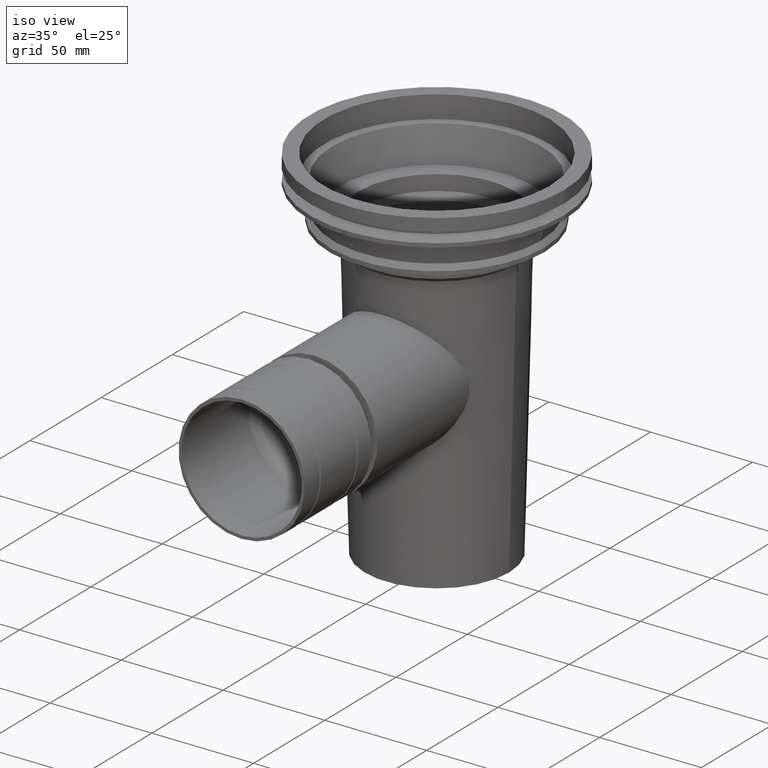
[diagram: clean part render]
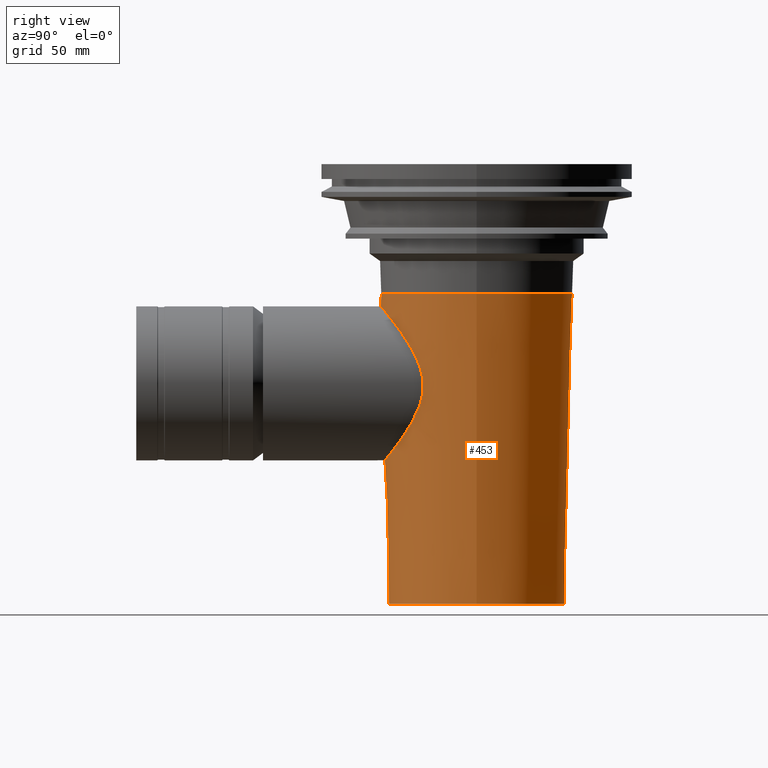
[diagram: tour spotlight — one face highlighted and labeled with its STEP entity id]
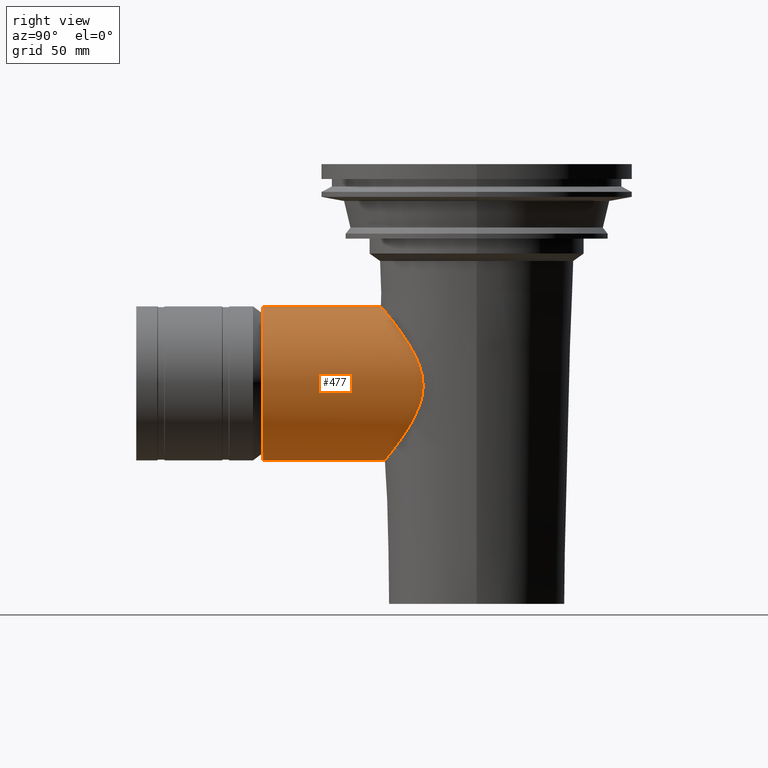
[diagram: tour spotlight — one face highlighted and labeled with its STEP entity id]
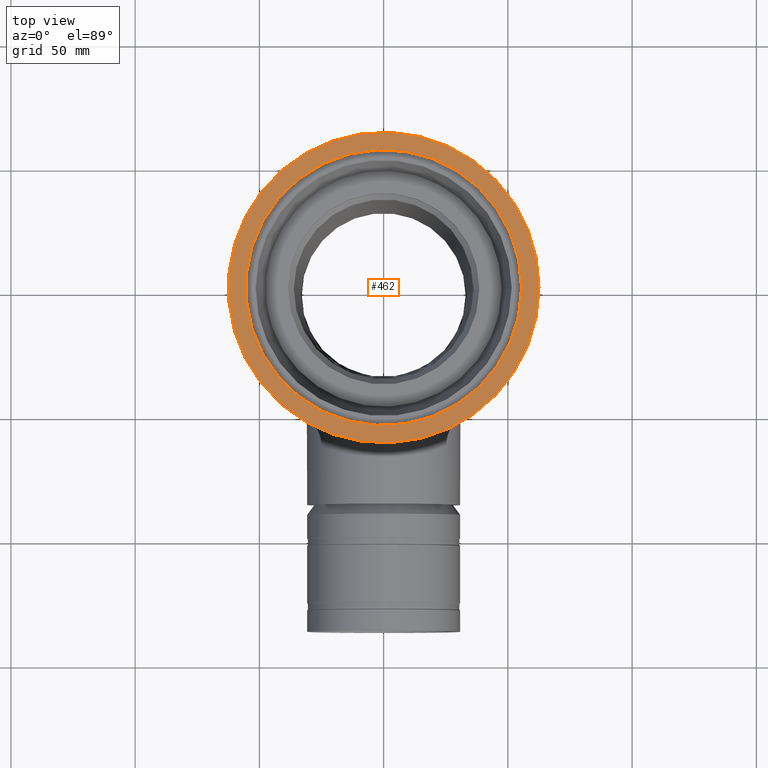
[diagram: tour spotlight — one face highlighted and labeled with its STEP entity id]
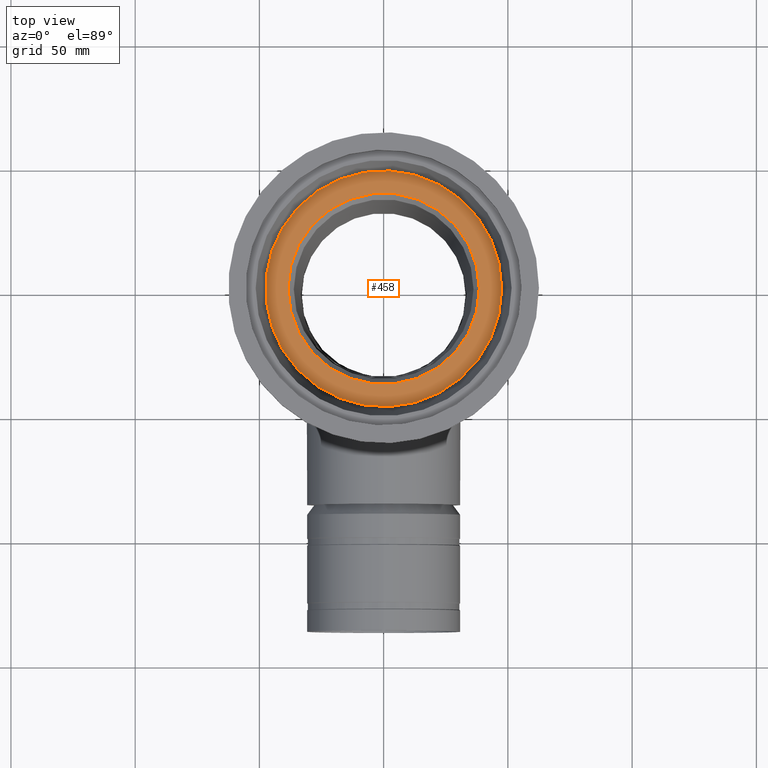
[diagram: tour spotlight — one face highlighted and labeled with its STEP entity id]
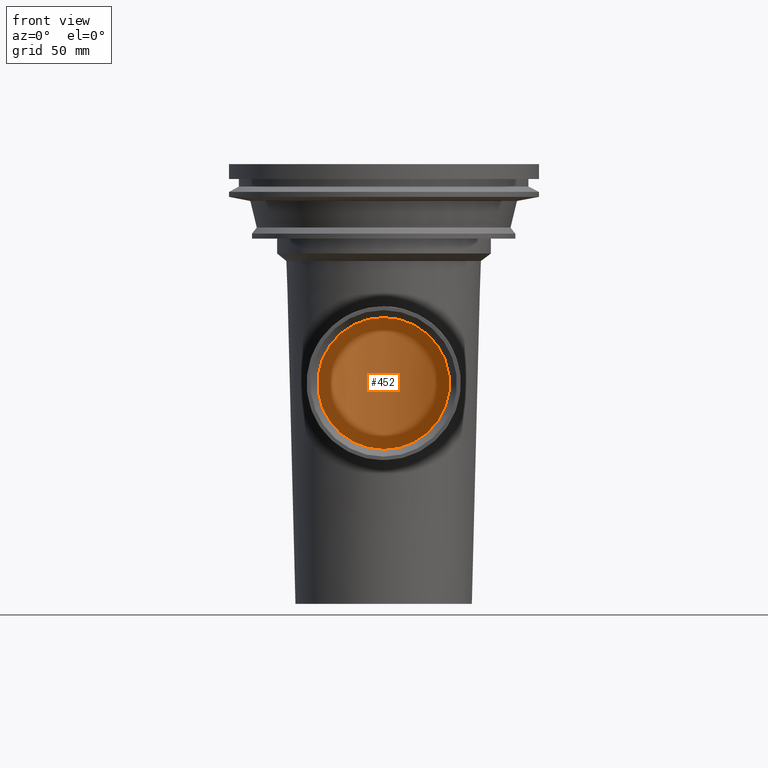
[diagram: tour spotlight — one face highlighted and labeled with its STEP entity id]
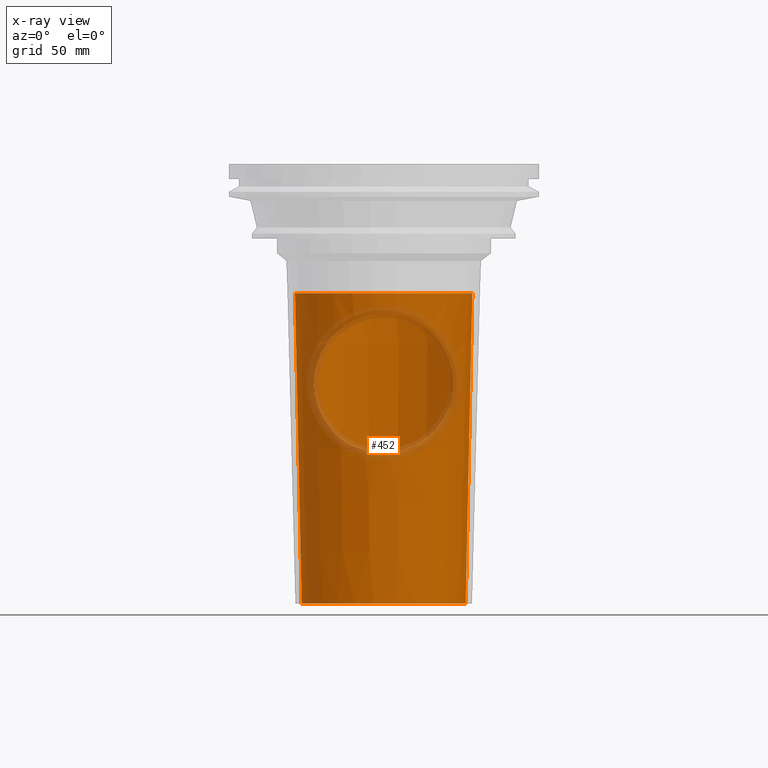
[diagram: x-ray of the same camera — body ghosted, this tour face saturated]
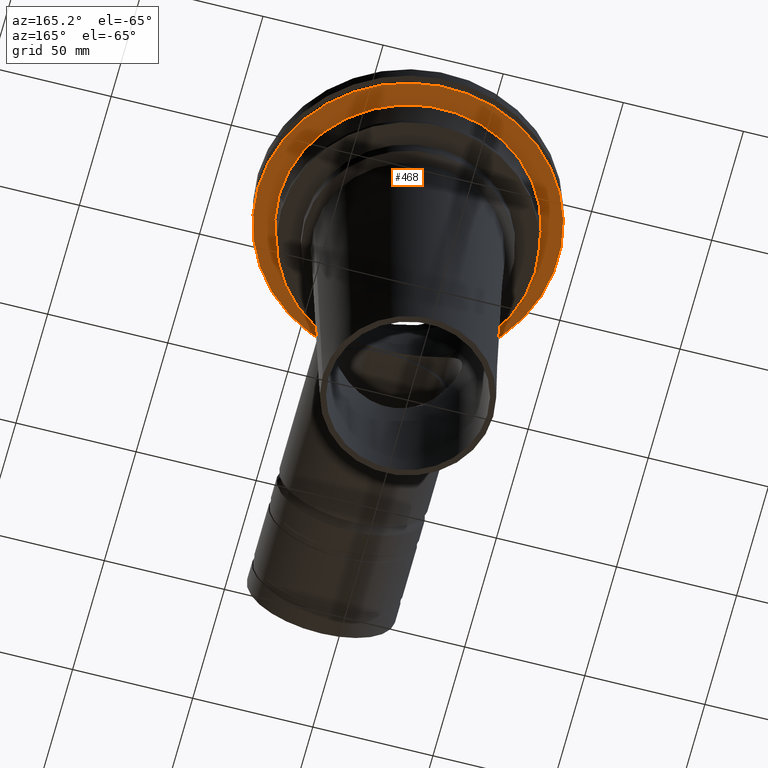
[diagram: tour spotlight — one face highlighted and labeled with its STEP entity id]
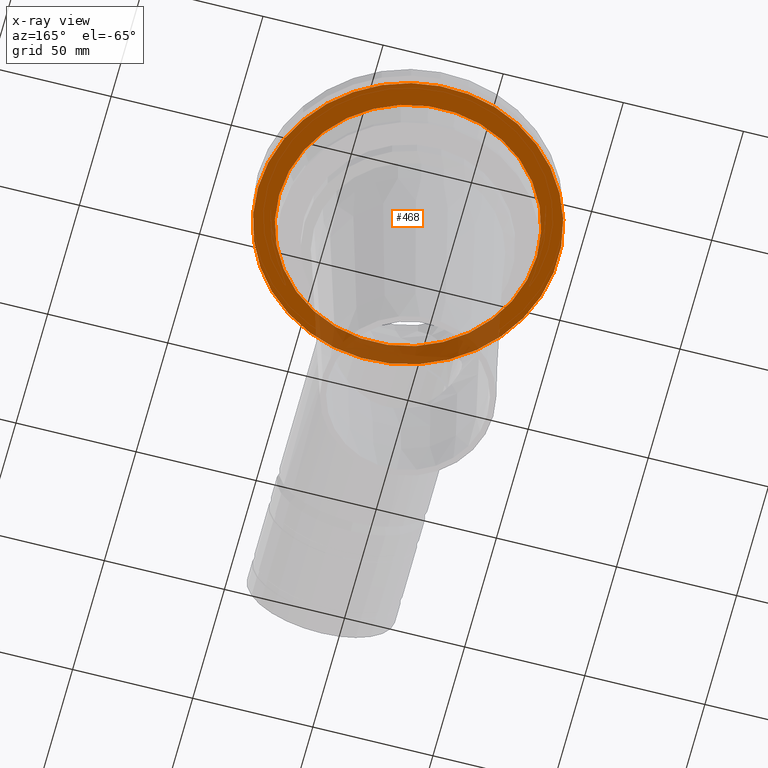
[diagram: x-ray of the same camera — body ghosted, this tour face saturated]
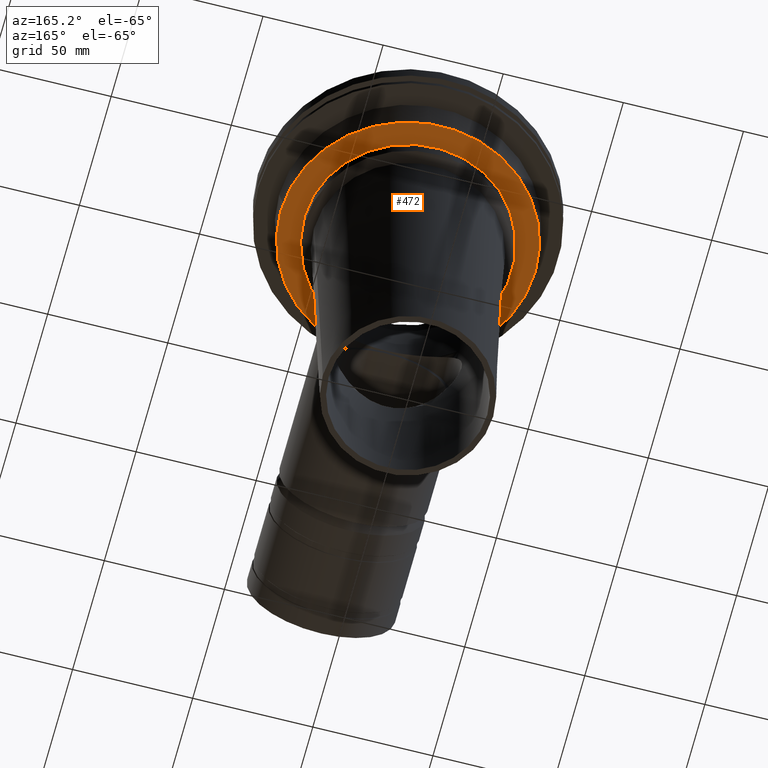
[diagram: tour spotlight — one face highlighted and labeled with its STEP entity id]
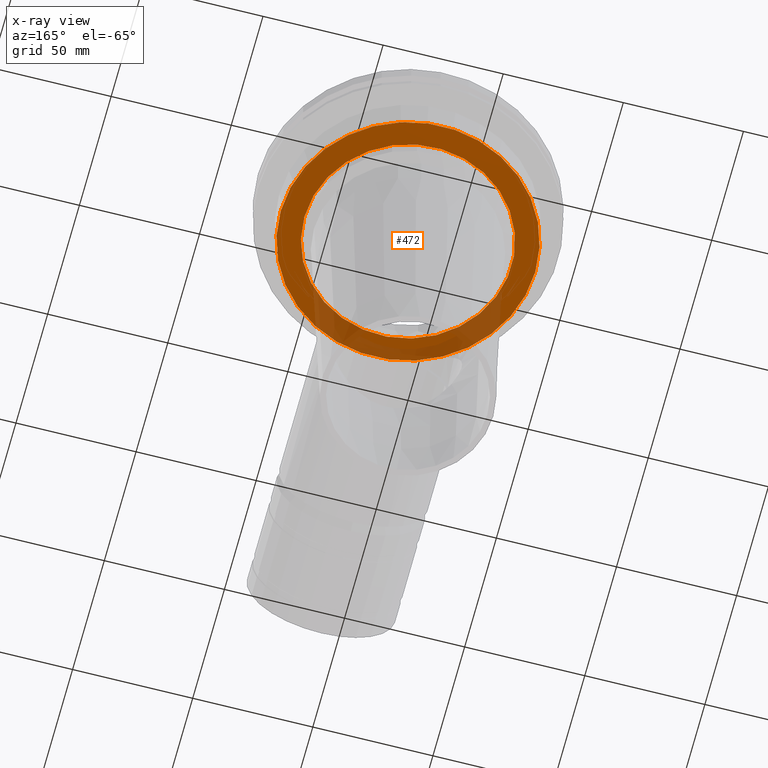
[diagram: x-ray of the same camera — body ghosted, this tour face saturated]
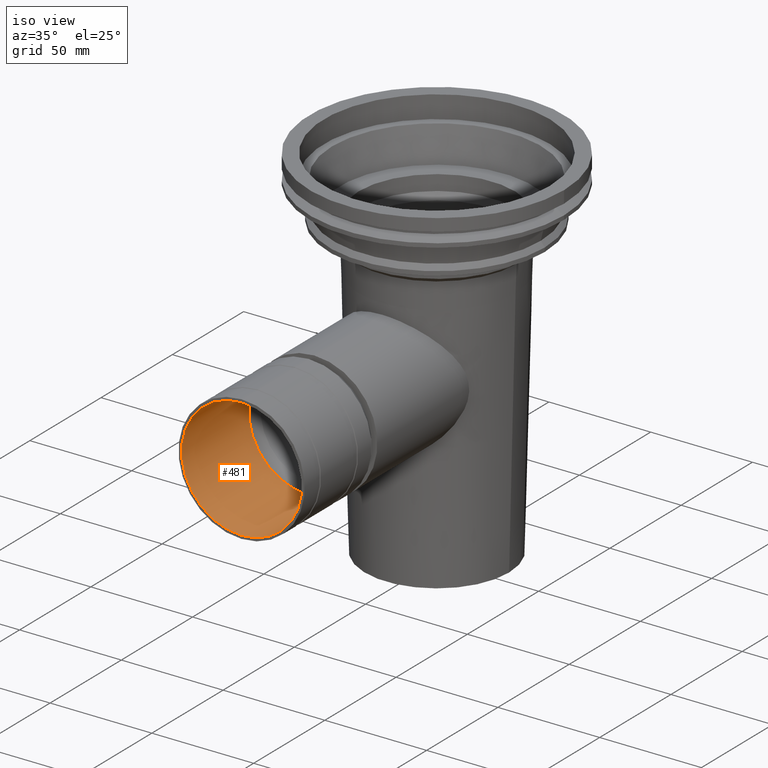
[diagram: tour spotlight — one face highlighted and labeled with its STEP entity id]
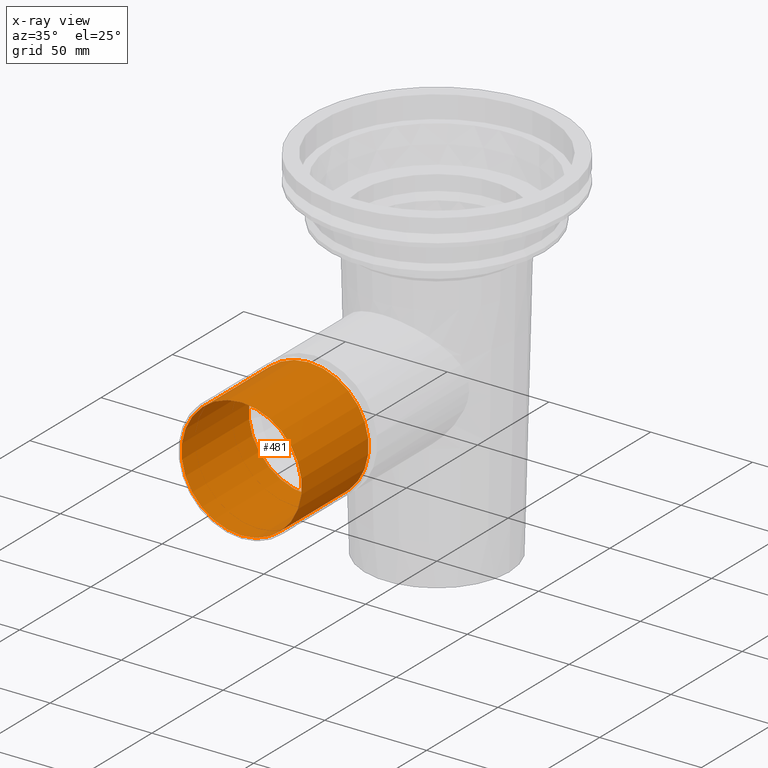
[diagram: x-ray of the same camera — body ghosted, this tour face saturated]
A machine part: a face-by-face anatomy tour. The part has 42 B-rep faces; the first image is the clean iso view, then the 8 largest visible faces are spotlighted one at a time (largest first), each with its STEP entity span.

Face 1 — right view, entity #453. In plain terms, the highlighted conical surface has half-angle 1.457 deg.
Definition (entity closure, byte-faithful):
#30=CONICAL_SURFACE('',#515,38.6793859391097,0.0254294472015564);
#47=B_SPLINE_CURVE_WITH_KNOTS('',3,(#827,#828,#829,#830,#831,#832,#833,
#834,#835,#836,#837,#838,#839,#840,#841,#842,#843,#844,#845,#846,#847,#848,
#849,#850,#851,#852,#853,#854,#855,#856,#857,#858,#859,#860,#861,#862,#863,
#864,#865,#866,#867,#868,#869,#870,#871,#872,#873,#874,#875,#876,#877,#878,
#879,#880),.UNSPECIFIED.,.T.,.F.,(1,1,1,1,1,1,1,1,1,1,1,1,1,1,1,1,1,1,1,
1,1,1,1,1,1,1,1,1,1,1,1,1,1,1,1,1,1,1,1,1,1,1,1,1,1,1,1,1,1,1,1,1,1,1,1,
1,1,1),(-0.0128925396919072,-0.00644626984595356,-0.00322313492297679,0.,
0.00644626984595357,0.0128925396919071,0.0193388095378607,0.0225619444608375,
0.0257850793838143,0.0322313492297679,0.0354544841527446,0.0386776190757214,
0.045123888921675,0.0483470238446518,0.0515701587676286,0.0547932936906054,
0.0580164286135821,0.0612395635365589,0.0644626984595357,0.0709089683054893,
0.0741321032284661,0.0773552381514429,0.0805783730744196,0.0838015079973964,
0.0870246429203732,0.09024777784335,0.0966940476893036,0.0999171826122804,
0.103140317535257,0.109586587381211,0.112809722304187,0.116032857227164,
0.122479127073118,0.125702261996095,0.128925396919071,0.135371666765025,
0.138594801688002,0.141817936610979,0.148264206456932,0.151487341379909,
0.154710476302886,0.161156746148839,0.164379881071816,0.167603015994793,
0.17082615091777,0.174049285840746,0.177272420763723,0.1804955556867,0.183718690609677,
0.186941825532654,0.19016496045563,0.193388095378607,0.199834365224561,
0.203057500147537,0.206280635070514,0.212726904916468,0.219173174762421,
0.225619444608375),.UNSPECIFIED.);
#57=ORIENTED_EDGE('',*,*,#142,.T.);
#58=ORIENTED_EDGE('',*,*,#143,.F.);
#59=ORIENTED_EDGE('',*,*,#144,.F.);
#142=EDGE_CURVE('',#185,#185,#227,.T.);
#143=EDGE_CURVE('',#186,#186,#47,.T.);
#144=EDGE_CURVE('',#187,#187,#228,.T.);
#185=VERTEX_POINT('',#826);
#186=VERTEX_POINT('',#881);
#187=VERTEX_POINT('',#883);
#227=CIRCLE('',#516,35.5000196897832);
#228=CIRCLE('',#517,38.6793859391097);
#270=EDGE_LOOP('',(#57));
#271=EDGE_LOOP('',(#58));
#272=EDGE_LOOP('',(#59));
#356=FACE_BOUND('',#270,.T.);
#357=FACE_BOUND('',#271,.T.);
#358=FACE_BOUND('',#272,.T.);
#453=ADVANCED_FACE('',(#356,#357,#358),#30,.T.);
#515=AXIS2_PLACEMENT_3D('',#824,#611,#612);
#516=AXIS2_PLACEMENT_3D('',#825,#613,#614);
#517=AXIS2_PLACEMENT_3D('',#882,#615,#616);
#611=DIRECTION('',(0.,0.,1.));
#612=DIRECTION('',(1.,0.,0.));
#613=DIRECTION('',(0.,0.,1.));
#614=DIRECTION('',(1.,0.,0.));
#615=DIRECTION('',(0.,0.,1.));
#616=DIRECTION('',(1.,0.,0.));
#824=CARTESIAN_POINT('',(0.,0.,-52.));
#825=CARTESIAN_POINT('',(0.,0.,-177.));
#826=CARTESIAN_POINT('',(35.5000196897832,0.,-177.));
#827=CARTESIAN_POINT('',(-24.2020794138604,-28.3655979840772,-107.694062204024));
#828=CARTESIAN_POINT('',(-21.6196090537164,-30.3372340167425,-110.61481679467));
#829=CARTESIAN_POINT('',(-17.9288782946455,-32.645616957629,-113.771398485993));
#830=CARTESIAN_POINT('',(-12.6111455214792,-34.9898348086712,-116.793748279918));
#831=CARTESIAN_POINT('',(-7.63367143167863,-36.3039376575916,-118.429937776735));
#832=CARTESIAN_POINT('',(-3.3622724666985,-36.8655703686754,-119.123110523214));
#833=CARTESIAN_POINT('',(0.902393439781273,-37.0647882541578,-119.367655378367));
#834=CARTESIAN_POINT('',(5.26870966359604,-36.7070477854964,-118.929302080987));
#835=CARTESIAN_POINT('',(9.34764894023942,-35.8487414241136,-117.86311604215));
#836=CARTESIAN_POINT('',(13.292782656803,-34.6784162055808,-116.390982148196));
#837=CARTESIAN_POINT('',(16.8219161051439,-33.1470732802401,-114.421413207739));
#838=CARTESIAN_POINT('',(19.9787253282292,-31.3610412319053,-112.014151319368));
#839=CARTESIAN_POINT('',(22.1050138893091,-29.9576239953867,-110.047165142013));
#840=CARTESIAN_POINT('',(24.026710887276,-28.5071003172742,-107.909167382278));
#841=CARTESIAN_POINT('',(25.7548125950132,-27.0334136855193,-105.585422435672));
#842=CARTESIAN_POINT('',(27.2694817762062,-25.5915545011716,-103.089135355185));
#843=CARTESIAN_POINT('',(28.9752665386673,-23.8079877870818,-99.5754224116323));
#844=CARTESIAN_POINT('',(30.2351758387411,-22.3151816102908,-95.6437243406531));
#845=CARTESIAN_POINT('',(30.893866456091,-21.5671225153926,-91.427865457505));
#846=CARTESIAN_POINT('',(31.0565692225448,-21.4775209995505,-88.1514056409559));
#847=CARTESIAN_POINT('',(30.8791388355016,-21.8769786184087,-84.9497645881513));
#848=CARTESIAN_POINT('',(30.3765440039348,-22.7097819948825,-81.810739274948));
#849=CARTESIAN_POINT('',(29.6048512491688,-23.8324266700252,-78.8940066114416));
#850=CARTESIAN_POINT('',(28.2238417394831,-25.6276103895083,-75.166771297401));
#851=CARTESIAN_POINT('',(26.4069047165941,-27.637302498281,-71.8231006785557));
#852=CARTESIAN_POINT('',(24.1738854848016,-29.6775412306832,-68.772758832251));
#853=CARTESIAN_POINT('',(21.6248457360643,-31.718874486504,-65.8932457832605));
#854=CARTESIAN_POINT('',(18.699386916398,-33.6140700841759,-63.3911651688076));
#855=CARTESIAN_POINT('',(15.3715002001309,-35.2761049835387,-61.2726112403867));
#856=CARTESIAN_POINT('',(11.7065077924409,-36.7621608123346,-59.4164873596149));
#857=CARTESIAN_POINT('',(7.74794598366786,-37.8432982503688,-58.0989267598268));
#858=CARTESIAN_POINT('',(3.46396140672299,-38.4315275182105,-57.387643647713));
#859=CARTESIAN_POINT('',(-0.810199747749418,-38.6460845673677,-57.1294412054625));
#860=CARTESIAN_POINT('',(-5.17996593244627,-38.2914621596288,-57.5554701107728));
#861=CARTESIAN_POINT('',(-9.2641761361357,-37.4233506475094,-58.6106267326447));
#862=CARTESIAN_POINT('',(-13.211942222454,-36.2344442018669,-60.0712245789772));
#863=CARTESIAN_POINT('',(-16.739169717078,-34.6728912338818,-62.0262958044075));
#864=CARTESIAN_POINT('',(-19.8950066806098,-32.8376136625767,-64.4161409748136));
#865=CARTESIAN_POINT('',(-22.7230522584004,-30.9075921267132,-67.0134431479447));
#866=CARTESIAN_POINT('',(-25.1420374738943,-28.8566507757776,-69.9394048790794));
#867=CARTESIAN_POINT('',(-27.1567863440715,-26.8060976713918,-73.2079153487557));
#868=CARTESIAN_POINT('',(-28.4292566646641,-25.3485868058738,-75.778471782283));
#869=CARTESIAN_POINT('',(-29.4769446549533,-24.0069969876869,-78.5014316209705));
#870=CARTESIAN_POINT('',(-30.2914064230381,-22.8409381375682,-81.4200593509239));
#871=CARTESIAN_POINT('',(-30.833063194216,-21.9604349682587,-84.5434069315562));
#872=CARTESIAN_POINT('',(-31.0537370673468,-21.4991191010853,-87.764512906828));
#873=CARTESIAN_POINT('',(-30.9302551908082,-21.531077852359,-91.055245427576));
#874=CARTESIAN_POINT('',(-30.4718245744641,-22.0431867091058,-94.2388501309101));
#875=CARTESIAN_POINT('',(-29.701565249598,-22.9503611890216,-97.3051507732453));
#876=CARTESIAN_POINT('',(-28.3368255219108,-24.5002872989631,-101.095756778406));
#877=CARTESIAN_POINT('',(-26.4700449301132,-26.4101938044589,-104.585820060428));
#878=CARTESIAN_POINT('',(-24.2020794138604,-28.3655979840772,-107.694062204024));
#879=CARTESIAN_POINT('',(-21.6196090537164,-30.3372340167425,-110.61481679467));
#880=CARTESIAN_POINT('',(-17.9288782946455,-32.645616957629,-113.771398485993));
#881=CARTESIAN_POINT('',(-22.2343837898263,-29.8339142019131,-109.851670710542));
#882=CARTESIAN_POINT('',(0.,0.,-52.));
#883=CARTESIAN_POINT('',(38.6793859391097,0.,-52.));

Face 2 — right view, entity #477. In plain terms, the highlighted cylindrical surface (bore or boss wall) has radius 31 mm, axis along (0, 1, 0).
Definition (entity closure, byte-faithful):
#47=B_SPLINE_CURVE_WITH_KNOTS('',3,(#827,#828,#829,#830,#831,#832,#833,
#834,#835,#836,#837,#838,#839,#840,#841,#842,#843,#844,#845,#846,#847,#848,
#849,#850,#851,#852,#853,#854,#855,#856,#857,#858,#859,#860,#861,#862,#863,
#864,#865,#866,#867,#868,#869,#870,#871,#872,#873,#874,#875,#876,#877,#878,
#879,#880),.UNSPECIFIED.,.T.,.F.,(1,1,1,1,1,1,1,1,1,1,1,1,1,1,1,1,1,1,1,
1,1,1,1,1,1,1,1,1,1,1,1,1,1,1,1,1,1,1,1,1,1,1,1,1,1,1,1,1,1,1,1,1,1,1,1,
1,1,1),(-0.0128925396919072,-0.00644626984595356,-0.00322313492297679,0.,
0.00644626984595357,0.0128925396919071,0.0193388095378607,0.0225619444608375,
0.0257850793838143,0.0322313492297679,0.0354544841527446,0.0386776190757214,
0.045123888921675,0.0483470238446518,0.0515701587676286,0.0547932936906054,
0.0580164286135821,0.0612395635365589,0.0644626984595357,0.0709089683054893,
0.0741321032284661,0.0773552381514429,0.0805783730744196,0.0838015079973964,
0.0870246429203732,0.09024777784335,0.0966940476893036,0.0999171826122804,
0.103140317535257,0.109586587381211,0.112809722304187,0.116032857227164,
0.122479127073118,0.125702261996095,0.128925396919071,0.135371666765025,
0.138594801688002,0.141817936610979,0.148264206456932,0.151487341379909,
0.154710476302886,0.161156746148839,0.164379881071816,0.167603015994793,
0.17082615091777,0.174049285840746,0.177272420763723,0.1804955556867,0.183718690609677,
0.186941825532654,0.19016496045563,0.193388095378607,0.199834365224561,
0.203057500147537,0.206280635070514,0.212726904916468,0.219173174762421,
0.225619444608375),.UNSPECIFIED.);
#106=ORIENTED_EDGE('',*,*,#166,.T.);
#107=ORIENTED_EDGE('',*,*,#143,.T.);
#143=EDGE_CURVE('',#186,#186,#47,.T.);
#166=EDGE_CURVE('',#209,#209,#250,.T.);
#186=VERTEX_POINT('',#881);
#209=VERTEX_POINT('',#950);
#250=CIRCLE('',#562,31.);
#319=EDGE_LOOP('',(#106));
#320=EDGE_LOOP('',(#107));
#405=FACE_BOUND('',#319,.T.);
#406=FACE_BOUND('',#320,.T.);
#443=CYLINDRICAL_SURFACE('',#563,31.);
#477=ADVANCED_FACE('',(#405,#406),#443,.T.);
#562=AXIS2_PLACEMENT_3D('',#949,#705,#706);
#563=AXIS2_PLACEMENT_3D('',#951,#707,#708);
#705=DIRECTION('',(0.,1.,0.));
#706=DIRECTION('',(0.,0.,1.));
#707=DIRECTION('',(0.,1.,0.));
#708=DIRECTION('',(0.,0.,1.));
#827=CARTESIAN_POINT('',(-24.2020794138604,-28.3655979840772,-107.694062204024));
#828=CARTESIAN_POINT('',(-21.6196090537164,-30.3372340167425,-110.61481679467));
#829=CARTESIAN_POINT('',(-17.9288782946455,-32.645616957629,-113.771398485993));
#830=CARTESIAN_POINT('',(-12.6111455214792,-34.9898348086712,-116.793748279918));
#831=CARTESIAN_POINT('',(-7.63367143167863,-36.3039376575916,-118.429937776735));
#832=CARTESIAN_POINT('',(-3.3622724666985,-36.8655703686754,-119.123110523214));
#833=CARTESIAN_POINT('',(0.902393439781273,-37.0647882541578,-119.367655378367));
#834=CARTESIAN_POINT('',(5.26870966359604,-36.7070477854964,-118.929302080987));
#835=CARTESIAN_POINT('',(9.34764894023942,-35.8487414241136,-117.86311604215));
#836=CARTESIAN_POINT('',(13.292782656803,-34.6784162055808,-116.390982148196));
#837=CARTESIAN_POINT('',(16.8219161051439,-33.1470732802401,-114.421413207739));
#838=CARTESIAN_POINT('',(19.9787253282292,-31.3610412319053,-112.014151319368));
#839=CARTESIAN_POINT('',(22.1050138893091,-29.9576239953867,-110.047165142013));
#840=CARTESIAN_POINT('',(24.026710887276,-28.5071003172742,-107.909167382278));
#841=CARTESIAN_POINT('',(25.7548125950132,-27.0334136855193,-105.585422435672));
#842=CARTESIAN_POINT('',(27.2694817762062,-25.5915545011716,-103.089135355185));
#843=CARTESIAN_POINT('',(28.9752665386673,-23.8079877870818,-99.5754224116323));
#844=CARTESIAN_POINT('',(30.2351758387411,-22.3151816102908,-95.6437243406531));
#845=CARTESIAN_POINT('',(30.893866456091,-21.5671225153926,-91.427865457505));
#846=CARTESIAN_POINT('',(31.0565692225448,-21.4775209995505,-88.1514056409559));
#847=CARTESIAN_POINT('',(30.8791388355016,-21.8769786184087,-84.9497645881513));
#848=CARTESIAN_POINT('',(30.3765440039348,-22.7097819948825,-81.810739274948));
#849=CARTESIAN_POINT('',(29.6048512491688,-23.8324266700252,-78.8940066114416));
#850=CARTESIAN_POINT('',(28.2238417394831,-25.6276103895083,-75.166771297401));
#851=CARTESIAN_POINT('',(26.4069047165941,-27.637302498281,-71.8231006785557));
#852=CARTESIAN_POINT('',(24.1738854848016,-29.6775412306832,-68.772758832251));
#853=CARTESIAN_POINT('',(21.6248457360643,-31.718874486504,-65.8932457832605));
#854=CARTESIAN_POINT('',(18.699386916398,-33.6140700841759,-63.3911651688076));
#855=CARTESIAN_POINT('',(15.3715002001309,-35.2761049835387,-61.2726112403867));
#856=CARTESIAN_POINT('',(11.7065077924409,-36.7621608123346,-59.4164873596149));
#857=CARTESIAN_POINT('',(7.74794598366786,-37.8432982503688,-58.0989267598268));
#858=CARTESIAN_POINT('',(3.46396140672299,-38.4315275182105,-57.387643647713));
#859=CARTESIAN_POINT('',(-0.810199747749418,-38.6460845673677,-57.1294412054625));
#860=CARTESIAN_POINT('',(-5.17996593244627,-38.2914621596288,-57.5554701107728));
#861=CARTESIAN_POINT('',(-9.2641761361357,-37.4233506475094,-58.6106267326447));
#862=CARTESIAN_POINT('',(-13.211942222454,-36.2344442018669,-60.0712245789772));
#863=CARTESIAN_POINT('',(-16.739169717078,-34.6728912338818,-62.0262958044075));
#864=CARTESIAN_POINT('',(-19.8950066806098,-32.8376136625767,-64.4161409748136));
#865=CARTESIAN_POINT('',(-22.7230522584004,-30.9075921267132,-67.0134431479447));
#866=CARTESIAN_POINT('',(-25.1420374738943,-28.8566507757776,-69.9394048790794));
#867=CARTESIAN_POINT('',(-27.1567863440715,-26.8060976713918,-73.2079153487557));
#868=CARTESIAN_POINT('',(-28.4292566646641,-25.3485868058738,-75.778471782283));
#869=CARTESIAN_POINT('',(-29.4769446549533,-24.0069969876869,-78.5014316209705));
#870=CARTESIAN_POINT('',(-30.2914064230381,-22.8409381375682,-81.4200593509239));
#871=CARTESIAN_POINT('',(-30.833063194216,-21.9604349682587,-84.5434069315562));
#872=CARTESIAN_POINT('',(-31.0537370673468,-21.4991191010853,-87.764512906828));
#873=CARTESIAN_POINT('',(-30.9302551908082,-21.531077852359,-91.055245427576));
#874=CARTESIAN_POINT('',(-30.4718245744641,-22.0431867091058,-94.2388501309101));
#875=CARTESIAN_POINT('',(-29.701565249598,-22.9503611890216,-97.3051507732453));
#876=CARTESIAN_POINT('',(-28.3368255219108,-24.5002872989631,-101.095756778406));
#877=CARTESIAN_POINT('',(-26.4700449301132,-26.4101938044589,-104.585820060428));
#878=CARTESIAN_POINT('',(-24.2020794138604,-28.3655979840772,-107.694062204024));
#879=CARTESIAN_POINT('',(-21.6196090537164,-30.3372340167425,-110.61481679467));
#880=CARTESIAN_POINT('',(-17.9288782946455,-32.645616957629,-113.771398485993));
#881=CARTESIAN_POINT('',(-22.2343837898263,-29.8339142019131,-109.851670710542));
#949=CARTESIAN_POINT('',(0.,-86.,-88.25));
#950=CARTESIAN_POINT('',(0.,-86.,-57.25));
#951=CARTESIAN_POINT('',(0.,0.,-88.25));

Face 3 — top view, entity #462. In plain terms, the highlighted planar face has unit normal (0, 0, 1).
Definition (entity closure, byte-faithful):
#23=PLANE('',#533);
#76=ORIENTED_EDGE('',*,*,#152,.T.);
#77=ORIENTED_EDGE('',*,*,#151,.F.);
#151=EDGE_CURVE('',#194,#194,#235,.T.);
#152=EDGE_CURVE('',#195,#195,#236,.T.);
#194=VERTEX_POINT('',#905);
#195=VERTEX_POINT('',#908);
#235=CIRCLE('',#532,55.5);
#236=CIRCLE('',#534,62.5);
#289=EDGE_LOOP('',(#76));
#290=EDGE_LOOP('',(#77));
#375=FACE_BOUND('',#289,.T.);
#376=FACE_BOUND('',#290,.T.);
#462=ADVANCED_FACE('',(#375,#376),#23,.T.);
#532=AXIS2_PLACEMENT_3D('',#904,#645,#646);
#533=AXIS2_PLACEMENT_3D('',#906,#647,#648);
#534=AXIS2_PLACEMENT_3D('',#907,#649,#650);
#645=DIRECTION('',(0.,0.,1.));
#646=DIRECTION('',(1.,0.,0.));
#647=DIRECTION('',(0.,0.,1.));
#648=DIRECTION('',(1.,0.,0.));
#649=DIRECTION('',(0.,0.,1.));
#650=DIRECTION('',(1.,0.,0.));
#904=CARTESIAN_POINT('',(0.,0.,0.));
#905=CARTESIAN_POINT('',(55.5,0.,0.));
#906=CARTESIAN_POINT('',(55.5,0.,0.));
#907=CARTESIAN_POINT('',(0.,0.,0.));
#908=CARTESIAN_POINT('',(62.5,0.,0.));

Face 4 — top view, entity #458. In plain terms, the highlighted planar face has unit normal (0, 0, 1).
Definition (entity closure, byte-faithful):
#21=PLANE('',#525);
#68=ORIENTED_EDGE('',*,*,#148,.T.);
#69=ORIENTED_EDGE('',*,*,#147,.F.);
#147=EDGE_CURVE('',#190,#190,#231,.T.);
#148=EDGE_CURVE('',#191,#191,#232,.T.);
#190=VERTEX_POINT('',#893);
#191=VERTEX_POINT('',#896);
#231=CIRCLE('',#524,38.505);
#232=CIRCLE('',#526,47.4999181723626);
#281=EDGE_LOOP('',(#68));
#282=EDGE_LOOP('',(#69));
#367=FACE_BOUND('',#281,.T.);
#368=FACE_BOUND('',#282,.T.);
#458=ADVANCED_FACE('',(#367,#368),#21,.T.);
#524=AXIS2_PLACEMENT_3D('',#892,#629,#630);
#525=AXIS2_PLACEMENT_3D('',#894,#631,#632);
#526=AXIS2_PLACEMENT_3D('',#895,#633,#634);
#629=DIRECTION('',(0.,0.,1.));
#630=DIRECTION('',(1.,0.,0.));
#631=DIRECTION('',(0.,0.,1.));
#632=DIRECTION('',(1.,0.,0.));
#633=DIRECTION('',(0.,0.,1.));
#634=DIRECTION('',(1.,0.,0.));
#892=CARTESIAN_POINT('',(0.,0.,-27.523));
#893=CARTESIAN_POINT('',(38.505,0.,-27.523));
#894=CARTESIAN_POINT('',(38.505,0.,-27.523));
#895=CARTESIAN_POINT('',(0.,0.,-27.523));
#896=CARTESIAN_POINT('',(47.4999181723626,0.,-27.523));

Face 5 — front view, entity #452. An x-ray twin of the same camera follows (body ghosted, this face saturated) — the face is partly hidden behind the body. In plain terms, the highlighted conical surface has half-angle 1.227 deg.
Definition (entity closure, byte-faithful):
#29=CONICAL_SURFACE('',#512,33.0020779252894,0.0214151899219702);
#46=B_SPLINE_CURVE_WITH_KNOTS('',3,(#767,#768,#769,#770,#771,#772,#773,
#774,#775,#776,#777,#778,#779,#780,#781,#782,#783,#784,#785,#786,#787,#788,
#789,#790,#791,#792,#793,#794,#795,#796,#797,#798,#799,#800,#801,#802,#803,
#804,#805,#806,#807,#808,#809,#810,#811,#812,#813,#814,#815),
 .UNSPECIFIED.,.T.,.F.,(1,1,1,1,1,1,1,1,1,1,1,1,1,1,1,1,1,1,1,1,1,1,1,1,
1,1,1,1,1,1,1,1,1,1,1,1,1,1,1,1,1,1,1,1,1,1,1,1,1,1,1,1,1),(-0.0115909098213004,
-0.00869318236597527,-0.00579545491065017,0.,0.00579545491065017,0.0115909098213003,
0.0173863647319505,0.0231818196426007,0.0289772745532509,0.031875002008576,
0.034772729463901,0.0405681843745512,0.0463636392852014,0.0521590941958516,
0.0579545491065017,0.0608522765618268,0.0637500040171519,0.0695454589278021,
0.0724431863831272,0.0753409138384523,0.0811363687491024,0.0840340962044275,
0.0869318236597526,0.0927272785704028,0.098522733481053,0.101420460936378,
0.104318188391703,0.107215915847028,0.110113643302353,0.113011370757678,
0.115909098213003,0.118806825668329,0.121704553123654,0.127500008034304,
0.130397735489629,0.133295462944954,0.139090917855604,0.141988645310929,
0.144886372766254,0.147784100221579,0.150681827676905,0.15357955513223,
0.156477282587555,0.162272737498205,0.16517046495353,0.168068192408855,
0.173863647319505,0.17676137477483,0.179659102230155,0.185454557140806,
0.191250012051456,0.197045466962106,0.202840921872756),.UNSPECIFIED.);
#54=ORIENTED_EDGE('',*,*,#140,.T.);
#55=ORIENTED_EDGE('',*,*,#141,.F.);
#56=ORIENTED_EDGE('',*,*,#138,.F.);
#138=EDGE_CURVE('',#181,#181,#46,.T.);
#140=EDGE_CURVE('',#183,#183,#225,.T.);
#141=EDGE_CURVE('',#184,#184,#226,.T.);
#181=VERTEX_POINT('',#816);
#183=VERTEX_POINT('',#821);
#184=VERTEX_POINT('',#823);
#225=CIRCLE('',#513,35.6793859584494);
#226=CIRCLE('',#514,33.0020779252894);
#267=EDGE_LOOP('',(#54));
#268=EDGE_LOOP('',(#55));
#269=EDGE_LOOP('',(#56));
#353=FACE_BOUND('',#267,.T.);
#354=FACE_BOUND('',#268,.T.);
#355=FACE_BOUND('',#269,.T.);
#452=ADVANCED_FACE('',(#353,#354,#355),#29,.F.);
#512=AXIS2_PLACEMENT_3D('',#819,#605,#606);
#513=AXIS2_PLACEMENT_3D('',#820,#607,#608);
#514=AXIS2_PLACEMENT_3D('',#822,#609,#610);
#605=DIRECTION('',(0.,0.,1.));
#606=DIRECTION('',(1.,0.,0.));
#607=DIRECTION('',(0.,0.,1.));
#608=DIRECTION('',(1.,0.,0.));
#609=DIRECTION('',(0.,0.,1.));
#610=DIRECTION('',(1.,0.,0.));
#767=CARTESIAN_POINT('',(-16.9872352548705,-30.0203946289643,-110.634985161673));
#768=CARTESIAN_POINT('',(-20.376211564795,-27.9424869813459,-107.694181657338));
#769=CARTESIAN_POINT('',(-23.6017295738502,-25.3605571365969,-103.612793057397));
#770=CARTESIAN_POINT('',(-26.0843468910801,-22.9136317301855,-98.8989195206904));
#771=CARTESIAN_POINT('',(-27.6936234909803,-21.0738840859919,-93.5564483987088));
#772=CARTESIAN_POINT('',(-28.2013689380494,-20.5824018025,-87.6662942679721));
#773=CARTESIAN_POINT('',(-27.5895916321977,-21.5883653312253,-82.8738117770499));
#774=CARTESIAN_POINT('',(-26.5889684541968,-22.9180639085729,-79.3370674495576));
#775=CARTESIAN_POINT('',(-25.3050354609601,-24.4580848899238,-76.039314161088));
#776=CARTESIAN_POINT('',(-23.1506434140508,-26.6758477221404,-72.222605372502));
#777=CARTESIAN_POINT('',(-19.8689712568594,-29.330588464593,-68.2941049349496));
#778=CARTESIAN_POINT('',(-15.7569049094579,-31.8342314477249,-64.8979434327823));
#779=CARTESIAN_POINT('',(-11.7819072159636,-33.5216777062087,-62.7286111846976));
#780=CARTESIAN_POINT('',(-8.21665345835886,-34.5504002868272,-61.432566040699));
#781=CARTESIAN_POINT('',(-4.54428541901322,-35.2952185798747,-60.5050019071948));
#782=CARTESIAN_POINT('',(-0.613275416619418,-35.5926621324913,-60.1391663402016));
#783=CARTESIAN_POINT('',(3.22882572930193,-35.3920753029166,-60.3863957147376));
#784=CARTESIAN_POINT('',(7.07149417361875,-34.8671291373978,-61.0368403533739));
#785=CARTESIAN_POINT('',(10.6430054930862,-33.9081850008818,-62.2355362651451));
#786=CARTESIAN_POINT('',(13.9384923491786,-32.6010242200707,-63.9147932318381));
#787=CARTESIAN_POINT('',(16.9579572196754,-31.1316051926924,-65.8445836782928));
#788=CARTESIAN_POINT('',(20.3115301651847,-29.0119260639656,-68.7441886325032));
#789=CARTESIAN_POINT('',(22.9870145321081,-26.7765924594984,-72.0990953676143));
#790=CARTESIAN_POINT('',(24.7705783818841,-25.0086088270546,-75.1074501583205));
#791=CARTESIAN_POINT('',(25.891548889339,-23.765642341305,-77.4825482859223));
#792=CARTESIAN_POINT('',(26.8044208000222,-22.6425132839582,-80.0014406722759));
#793=CARTESIAN_POINT('',(27.495213561348,-21.6987768645892,-82.7145082008448));
#794=CARTESIAN_POINT('',(27.9161047553171,-21.0497647701497,-85.5126607353269));
#795=CARTESIAN_POINT('',(28.0503316279317,-20.7621462019046,-88.4613160911995));
#796=CARTESIAN_POINT('',(27.878211873073,-20.8913521030698,-91.3519864414865));
#797=CARTESIAN_POINT('',(27.247465964867,-21.5874020970482,-95.176563938705));
#798=CARTESIAN_POINT('',(26.1027813633036,-22.8766925814026,-98.6559154439544));
#799=CARTESIAN_POINT('',(24.5111849017165,-24.4579368536378,-101.872132175256));
#800=CARTESIAN_POINT('',(22.6735295376674,-26.1209009661337,-104.837345055549));
#801=CARTESIAN_POINT('',(20.4584816137343,-27.8404159254926,-107.508477909544));
#802=CARTESIAN_POINT('',(17.8311542055448,-29.4958403642234,-109.892735230416));
#803=CARTESIAN_POINT('',(15.7078385558096,-30.6433651886678,-111.47972876237));
#804=CARTESIAN_POINT('',(13.4117883400867,-31.6861780210749,-112.878962505026));
#805=CARTESIAN_POINT('',(10.9245734136485,-32.6043035116609,-114.082168152684));
#806=CARTESIAN_POINT('',(8.24787185916668,-33.3621261238246,-115.057793414121));
#807=CARTESIAN_POINT('',(4.56859731810586,-34.096821981133,-115.99157599692));
#808=CARTESIAN_POINT('',(0.633645984392584,-34.3914668275679,-116.360710308181));
#809=CARTESIAN_POINT('',(-3.21605772405043,-34.196070347902,-116.115319451807));
#810=CARTESIAN_POINT('',(-7.06813018684728,-33.6810522380613,-115.464618064078));
#811=CARTESIAN_POINT('',(-10.6495960587415,-32.7390285769179,-114.262541413142));
#812=CARTESIAN_POINT('',(-13.9553084684698,-31.4578619158641,-112.575881379948));
#813=CARTESIAN_POINT('',(-16.9872352548705,-30.0203946289643,-110.634985161673));
#814=CARTESIAN_POINT('',(-20.376211564795,-27.9424869813459,-107.694181657338));
#815=CARTESIAN_POINT('',(-23.6017295738502,-25.3605571365969,-103.612793057397));
#816=CARTESIAN_POINT('',(-20.2360026376526,-27.927746870078,-107.602110924881));
#819=CARTESIAN_POINT('',(0.,0.,-177.));
#820=CARTESIAN_POINT('',(0.,0.,-52.));
#821=CARTESIAN_POINT('',(35.6793859584494,0.,-52.));
#822=CARTESIAN_POINT('',(0.,0.,-177.));
#823=CARTESIAN_POINT('',(33.0020779252894,0.,-177.));

Face 6 — auxiliary view, entity #468. An x-ray twin of the same camera follows (body ghosted, this face saturated) — the face is partly hidden behind the body. In plain terms, the highlighted conical surface has half-angle 79.345 deg.
Definition (entity closure, byte-faithful):
#35=CONICAL_SURFACE('',#545,62.5,1.3848314949949);
#88=ORIENTED_EDGE('',*,*,#158,.T.);
#89=ORIENTED_EDGE('',*,*,#157,.F.);
#157=EDGE_CURVE('',#200,#200,#241,.T.);
#158=EDGE_CURVE('',#201,#201,#242,.T.);
#200=VERTEX_POINT('',#923);
#201=VERTEX_POINT('',#926);
#241=CIRCLE('',#544,62.5);
#242=CIRCLE('',#546,53.6550744100284);
#301=EDGE_LOOP('',(#88));
#302=EDGE_LOOP('',(#89));
#387=FACE_BOUND('',#301,.T.);
#388=FACE_BOUND('',#302,.T.);
#468=ADVANCED_FACE('',(#387,#388),#35,.T.);
#544=AXIS2_PLACEMENT_3D('',#922,#669,#670);
#545=AXIS2_PLACEMENT_3D('',#924,#671,#672);
#546=AXIS2_PLACEMENT_3D('',#925,#673,#674);
#669=DIRECTION('',(0.,0.,1.));
#670=DIRECTION('',(1.,0.,0.));
#671=DIRECTION('',(0.,0.,1.));
#672=DIRECTION('',(1.,0.,0.));
#673=DIRECTION('',(0.,0.,1.));
#674=DIRECTION('',(1.,0.,0.));
#922=CARTESIAN_POINT('',(0.,0.,-13.184));
#923=CARTESIAN_POINT('',(62.5,0.,-13.184));
#924=CARTESIAN_POINT('',(0.,0.,-13.184));
#925=CARTESIAN_POINT('',(0.,0.,-14.8480722979784));
#926=CARTESIAN_POINT('',(53.6550744100284,0.,-14.8480722979784));

Face 7 — auxiliary view, entity #472. An x-ray twin of the same camera follows (body ghosted, this face saturated) — the face is partly hidden behind the body. In plain terms, the highlighted planar face has unit normal (0, 0, -1).
Definition (entity closure, byte-faithful):
#25=PLANE('',#553);
#96=ORIENTED_EDGE('',*,*,#162,.T.);
#97=ORIENTED_EDGE('',*,*,#161,.F.);
#161=EDGE_CURVE('',#204,#204,#245,.T.);
#162=EDGE_CURVE('',#205,#205,#246,.T.);
#204=VERTEX_POINT('',#935);
#205=VERTEX_POINT('',#938);
#245=CIRCLE('',#552,53.);
#246=CIRCLE('',#554,43.145);
#309=EDGE_LOOP('',(#96));
#310=EDGE_LOOP('',(#97));
#395=FACE_BOUND('',#309,.T.);
#396=FACE_BOUND('',#310,.T.);
#472=ADVANCED_FACE('',(#395,#396),#25,.T.);
#552=AXIS2_PLACEMENT_3D('',#934,#685,#686);
#553=AXIS2_PLACEMENT_3D('',#936,#687,#688);
#554=AXIS2_PLACEMENT_3D('',#937,#689,#690);
#685=DIRECTION('',(0.,0.,1.));
#686=DIRECTION('',(1.,0.,0.));
#687=DIRECTION('',(0.,0.,-1.));
#688=DIRECTION('',(-1.,0.,0.));
#689=DIRECTION('',(0.,0.,1.));
#690=DIRECTION('',(1.,0.,0.));
#934=CARTESIAN_POINT('',(0.,0.,-30.));
#935=CARTESIAN_POINT('',(53.,0.,-30.));
#936=CARTESIAN_POINT('',(53.,0.,-30.));
#937=CARTESIAN_POINT('',(0.,0.,-30.));
#938=CARTESIAN_POINT('',(43.145,0.,-30.));

Face 8 — iso view, entity #481. An x-ray twin of the same camera follows (body ghosted, this face saturated) — the face is partly hidden behind the body. In plain terms, the highlighted cylindrical surface (bore or boss wall) has radius 29.5 mm, axis along (0, 1, 0).
Definition (entity closure, byte-faithful):
#114=ORIENTED_EDGE('',*,*,#169,.T.);
#115=ORIENTED_EDGE('',*,*,#170,.F.);
#169=EDGE_CURVE('',#212,#212,#253,.T.);
#170=EDGE_CURVE('',#213,#213,#254,.T.);
#212=VERTEX_POINT('',#960);
#213=VERTEX_POINT('',#963);
#253=CIRCLE('',#569,29.5);
#254=CIRCLE('',#571,29.5);
#327=EDGE_LOOP('',(#114));
#328=EDGE_LOOP('',(#115));
#413=FACE_BOUND('',#327,.T.);
#414=FACE_BOUND('',#328,.T.);
#445=CYLINDRICAL_SURFACE('',#570,29.5);
#481=ADVANCED_FACE('',(#413,#414),#445,.F.);
#569=AXIS2_PLACEMENT_3D('',#959,#719,#720);
#570=AXIS2_PLACEMENT_3D('',#961,#721,#722);
#571=AXIS2_PLACEMENT_3D('',#962,#723,#724);
#719=DIRECTION('',(0.,1.,0.));
#720=DIRECTION('',(0.,0.,1.));
#721=DIRECTION('',(0.,1.,0.));
#722=DIRECTION('',(0.,0.,1.));
#723=DIRECTION('',(0.,1.,0.));
#724=DIRECTION('',(0.,0.,1.));
#959=CARTESIAN_POINT('',(0.,-89.9999851132269,-88.25));
#960=CARTESIAN_POINT('',(0.,-89.9999851132269,-58.75));
#961=CARTESIAN_POINT('',(0.,0.,-88.25));
#962=CARTESIAN_POINT('',(0.,-137.,-88.25));
#963=CARTESIAN_POINT('',(0.,-137.,-58.75));